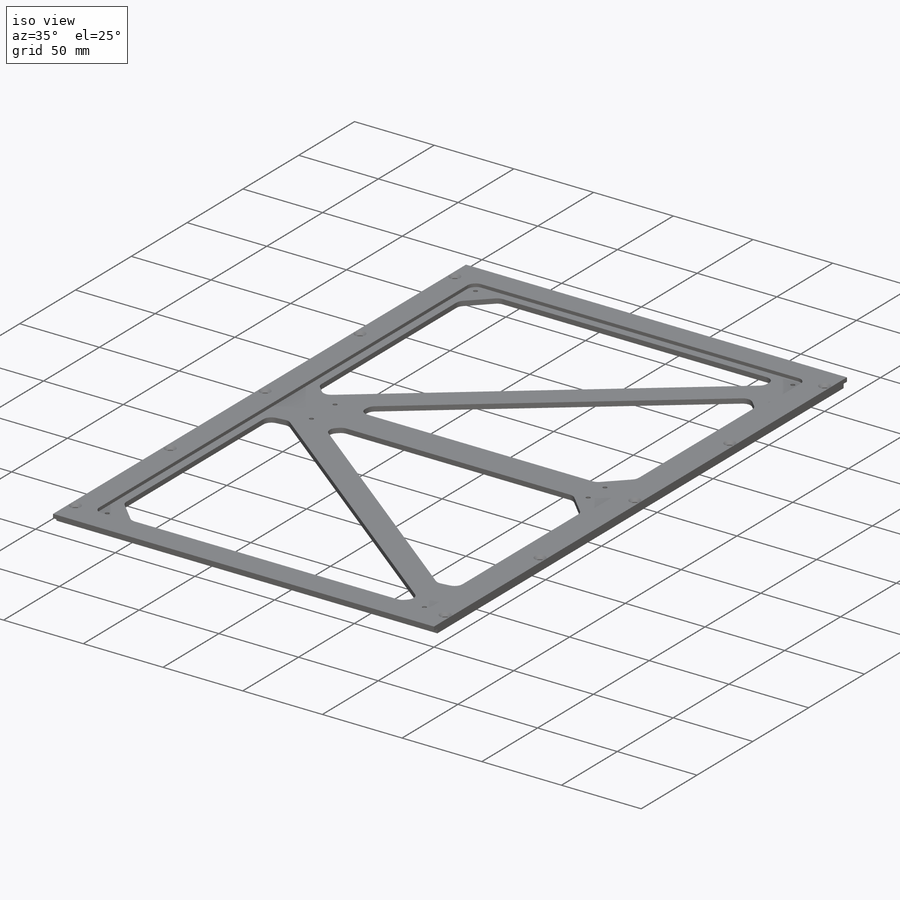
[diagram: iso view]
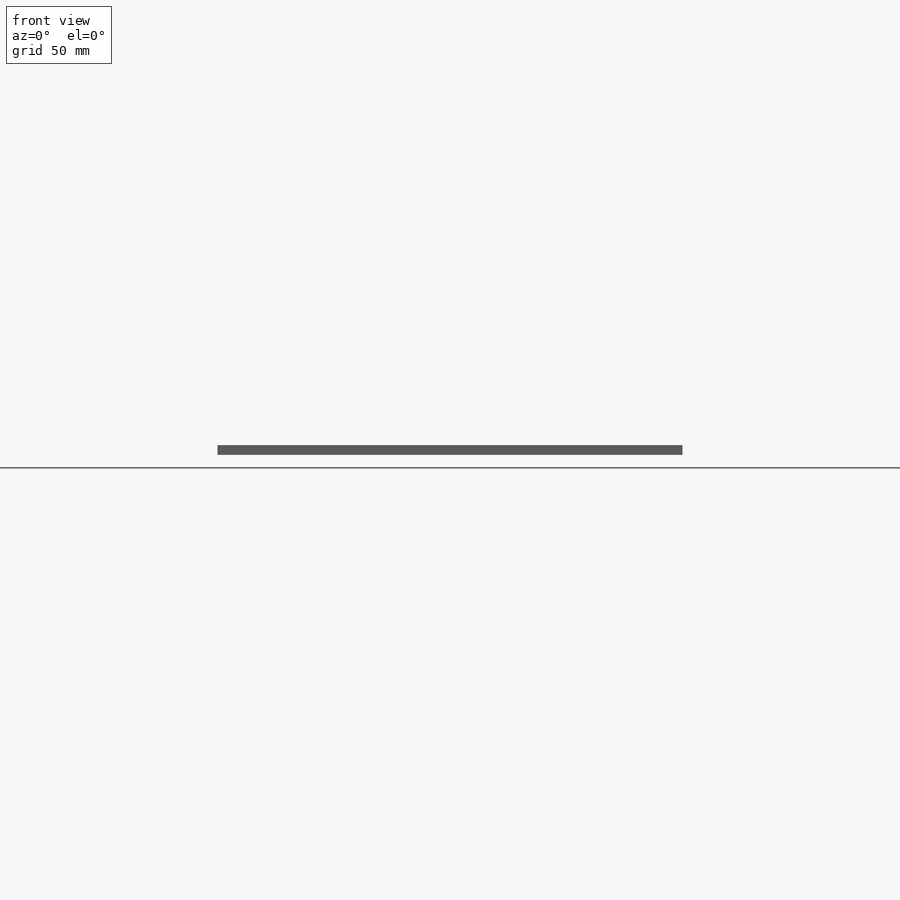
[diagram: front view]
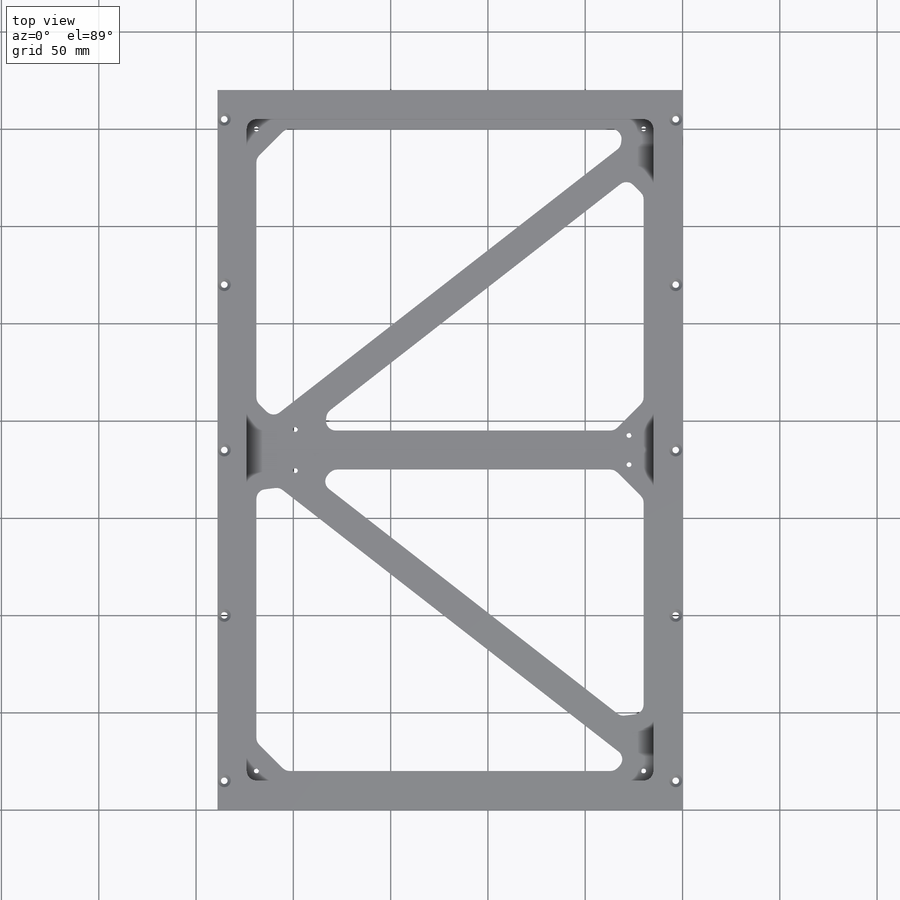
[diagram: top view]
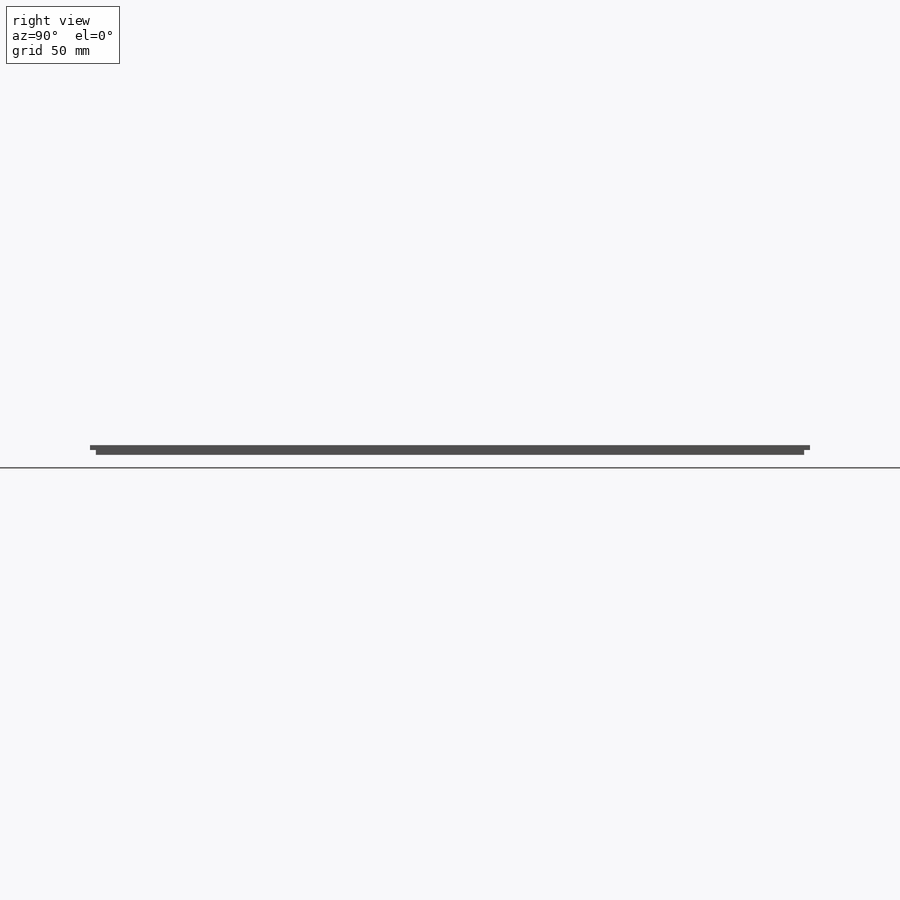
[diagram: right view]
SOLIDWORKS PART (.sldprt)
format: sldprt  version: not decoded by parser v0  size: 480,768 bytes
history: native  units: mm
features: sketch x10, thread x8, cut_extrude x3, hole x2, fillet x2, material x1, extrude x1, plane x1, mirror x1, chamfer x1 (+12 scaffold rows collapsed)
feature tree (42):
  scaffold x12  (default folders/planes/origin — collapsed)
  material  "2014 Alloy"
  sketch  "Sketch1"  dims[c1.D1=~33.806651mm c1.D2=~56.790227mm c2.D1=239.0mm c2.D2=370.0mm]
  extrude  "Boss-Extrude1"  Depth=5mm
  hole  "CSK for M3 Hex Socket Countersunk Cap Screw1"  Diameter=3.4mm Depth=5mm
  sketch  "Sketch3"  dims[D1=85.0mm D2=85.0mm D3=85.0mm D4=85.0mm D5=3.5mm]
  sketch  "Sketch2"  dims[hole-wizard template sketch: 56 standard entries collapsed; hole parameters kept: c17.Near C'Sink Dia.=6.72mm c17.D4=~3.666174mm c17.Near C'Sink Angle=90.0deg]
  sketch  "Sketch7"  dims[D1=~299.896394mm]
  sketch  "Sketch8"  dims[D1=5.0mm]
  plane  "Plane1"
  mirror  "Mirror1"
  sketch  "Sketch12"  dims[c1.D1=~22.052624mm c1.D2=~90.22263mm c2.D1=~3.605453mm c2.D2=239.0mm c3.D1=3.0mm c3.D2=~3.594879mm c3.D3=239.0mm c4.D2=3.0mm]
  cut_extrude  "Cut-Extrude7"  Depth=2.5mm
  sketch  "Sketch13"  dims[c1.D1=~163.453554mm c1.D2=~191.215709mm c2.D1=10.0mm c2.D2=20.0mm c2.D3=20.0mm c2.D4=20.0mm c2.D5=~255.344865mm c2.D7=~183.040946mm c3.D2=~234.902772mm c3.D1=10.0mm c4.D2=20.0mm c4.D3=20.0mm c4.D4=20.0mm c4.D5=~234.867164mm c5.D5=~179.844121deg c6.D5=10.0mm c6.D6=10.0mm]
  cut_extrude  "Cut-Extrude8"  [1 undecoded]
  chamfer  "Chamfer1"  Distance=15mm Angle=45deg
  fillet  "Fillet1"  Radius=5mm
  sketch  "Sketch14"  dims[c1.D1=~344.707863mm c1.D2=~210.220002mm c2.D1=5.0mm c2.D2=5.0mm c2.D3=5.0mm c2.D4=5.0mm]
  cut_extrude  "Cut-Extrude9"  Depth=2mm
  fillet  "Fillet2"  Radius=5mm
  hole  "M3 Tapped Hole1"  Diameter=2.5mm Depth=15mm
  sketch  "Sketch17"  dims[D1=10.0mm D2=10.0mm D3=25.0mm D4=15.0mm D5=15.0mm]
  sketch  "Sketch16"  dims[hole-wizard template sketch: 50 standard entries collapsed; hole parameters above]
  thread  "Hole Thread1"  Diameter=3mm  [1 undecoded]
  thread  "Hole Thread2"  Diameter=3mm  [1 undecoded]
  thread  "Hole Thread3"  Diameter=3mm  [1 undecoded]
  thread  "Hole Thread4"  Diameter=3mm  [1 undecoded]
  thread  "Hole Thread5"  Diameter=3mm  [1 undecoded]
  thread  "Hole Thread6"  Diameter=3mm  [1 undecoded]
  thread  "Hole Thread7"  Diameter=3mm  [1 undecoded]
  thread  "Hole Thread8"  Diameter=3mm  [1 undecoded]
decode coverage: 26 of 28 modeling features carry decoded parameters
note: ~ marks probable driven/reference dimensions
note: 9 parameter values undecoded
note: suppression state not decoded; provenance and decode notes live in map.json
